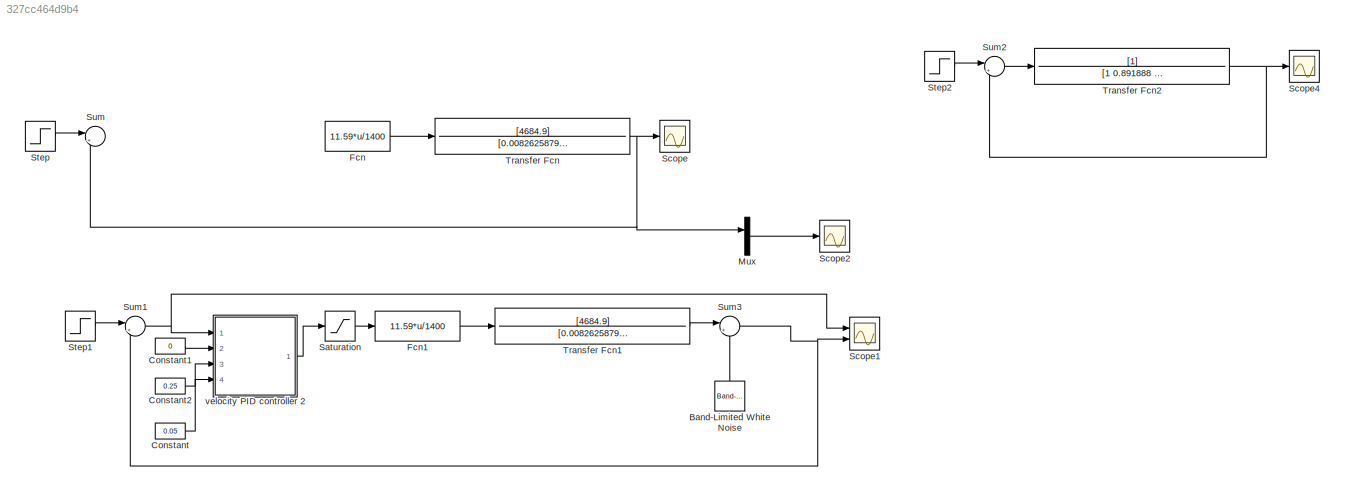
MODEL slx_327cc464d9b4
KIND model
CONFIG AbsTol = auto
CONFIG FixedStep = auto
CONFIG MaxStep = auto
CONFIG MinStep = auto
CONFIG RelTol = 1e-3
CONFIG SampleTimeConstraint = Unconstrained
CONFIG Solver = VariableStepAuto
CONFIG SolverMode = Auto
CONFIG SolverName = VariableStepAuto
CONFIG StartTime = 0.0
CONFIG StopTime = 5
BLOCK [Reference] Band-Limited White Noise  REF=simulink/Sources/Band-Limited
White Noise
  Ports = [0, 1]
  SourceBlock = simulink/Sources/Band-Limited\nWhite Noise
  SourceType = Band-Limited White Noise.
BLOCK [Constant] Constant
  OutMax = [1400]
  Value = 0.05
BLOCK [Constant] Constant1
  OutMax = [1400]
  Value = 0
BLOCK [Constant] Constant2
  OutMax = [1400]
  Value = 0.25
BLOCK [Fcn] Fcn
  Expr = 11.59*u/1400
BLOCK [Fcn] Fcn1
  Expr = 11.59*u/1400
BLOCK [Mux] Mux
  DisplayOption = bar
  Inputs = 2
  Ports = [2, 1]
BLOCK [Saturate] Saturation
  InputPortMap = u0
  LowerLimit = -1400
  Ports = [1, 1]
  UpperLimit = 1400
BLOCK [Scope] Scope
  Ports = [1]
  ScopeSpecificationString = Simulink.scopes.TimeScopeBlockCfg('CurrentConfiguration', extmgr.ConfigurationSet(extmgr.Configuration('Core','General UI',true),extmgr.Configuration('Core','Source UI',true),extmgr.Configuration('Sources','WiredSimulink',true),extmgr.Configuration('Visuals','Time Domain',true,'SerializedDisplays',{struct('MinYLimReal','-1.00000','MaxYLimReal','1.00000','YLabelReal','','MinYLimMag','0.00000','MaxY...<+1361ch>
BLOCK [Scope] Scope1
  NumInputPorts = 2
  Ports = [2]
  ScopeSpecificationString = Simulink.scopes.TimeScopeBlockCfg('CurrentConfiguration', extmgr.ConfigurationSet(extmgr.Configuration('Core','General UI',true),extmgr.Configuration('Core','Source UI',true),extmgr.Configuration('Sources','WiredSimulink',true,'DataLoggingVariableName','ScopeData1'),extmgr.Configuration('Visuals','Time Domain',true,'SerializedDisplays',{struct('MinYLimReal','-327.57411','MaxYLimReal','2327.57411',...<+1415ch>
BLOCK [Scope] Scope2
  Ports = [1]
  ScopeSpecificationString = Simulink.scopes.TimeScopeBlockCfg('CurrentConfiguration', extmgr.ConfigurationSet(extmgr.Configuration('Core','General UI',true),extmgr.Configuration('Core','Source UI',true),extmgr.Configuration('Sources','WiredSimulink',true,'DataLoggingVariableName','ScopeData2'),extmgr.Configuration('Visuals','Time Domain',true,'SerializedDisplays',{struct('MinYLimReal','-1.00000','MaxYLimReal','1.00000','YLab...<+1412ch>
BLOCK [Scope] Scope4
  Ports = [1]
  ScopeSpecificationString = Simulink.scopes.TimeScopeBlockCfg('CurrentConfiguration', extmgr.ConfigurationSet(extmgr.Configuration('Core','General UI',true),extmgr.Configuration('Core','Source UI',true),extmgr.Configuration('Sources','WiredSimulink',true,'DataLoggingVariableName','ScopeData1'),extmgr.Configuration('Visuals','Time Domain',true,'SerializedDisplays',{struct('MinYLimReal','-0.01676','MaxYLimReal','0.15085','YLab...<+1372ch>
BLOCK [Step] Step
  After = 9000
  SampleTime = 0.005
  Time = 0.11
BLOCK [Step] Step1
  After = 2000
  SampleTime = 0.005
  Time = 0
BLOCK [Step] Step2
  SampleTime = 0.005
  Time = 0
BLOCK [Sum] Sum
  IconShape = round
  InputSameDT = off
  Inputs = |+-
  OutDataTypeStr = Inherit: Inherit via internal rule
  Ports = [2, 1]
  SaturateOnIntegerOverflow = off
BLOCK [Sum] Sum1
  IconShape = round
  InputSameDT = off
  Inputs = |+-
  OutDataTypeStr = Inherit: Inherit via internal rule
  Ports = [2, 1]
  SaturateOnIntegerOverflow = off
BLOCK [Sum] Sum2
  IconShape = round
  InputSameDT = off
  Inputs = |+-
  OutDataTypeStr = Inherit: Inherit via internal rule
  Ports = [2, 1]
  SaturateOnIntegerOverflow = off
BLOCK [Sum] Sum3
  IconShape = round
  InputSameDT = off
  Inputs = |++
  OutDataTypeStr = Inherit: Inherit via internal rule
  Ports = [2, 1]
  SaturateOnIntegerOverflow = off
BLOCK [TransferFcn] Transfer Fcn
  Denominator = [0.00826258795  0.233603 1]
  Numerator = [4684.9]
BLOCK [TransferFcn] Transfer Fcn1
  Denominator = [0.00826258795  0.233603 1]
  Numerator = [4684.9]
BLOCK [TransferFcn] Transfer Fcn2
  Denominator = [1  0.891888 11.456445]
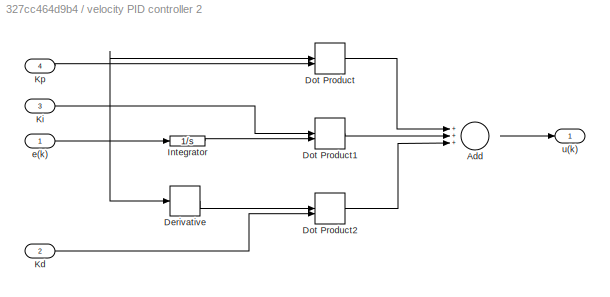
BLOCK [SubSystem] velocity PID controller 2
  Ports = [4, 1]
  RequestExecContextInheritance = off
  Variant = off
BLOCK [Sum] velocity PID controller 2/Add
  InputSameDT = off
  Inputs = +++
  OutDataTypeStr = Inherit: Inherit via internal rule
  Ports = [3, 1]
  SaturateOnIntegerOverflow = off
BLOCK [Derivative] velocity PID controller 2/Derivative
BLOCK [DotProduct] velocity PID controller 2/Dot Product
  OutDataTypeStr = Inherit: Inherit via internal rule
BLOCK [DotProduct] velocity PID controller 2/Dot Product1
  OutDataTypeStr = Inherit: Inherit via internal rule
BLOCK [DotProduct] velocity PID controller 2/Dot Product2
  OutDataTypeStr = Inherit: Inherit via internal rule
BLOCK [Integrator] velocity PID controller 2/Integrator
  Ports = [1, 1]
BLOCK [Inport] velocity PID controller 2/Kd 
  IconDisplay = Port number
  Port = 2
BLOCK [Inport] velocity PID controller 2/Ki 
  IconDisplay = Port number
  Port = 3
BLOCK [Inport] velocity PID controller 2/Kp 
  IconDisplay = Port number
  Port = 4
BLOCK [Inport] velocity PID controller 2/e(k)
  IconDisplay = Port number
BLOCK [Outport] velocity PID controller 2/u(k)
  IconDisplay = Port number
LINE Band-Limited White Noise:1 -> Sum3:2
LINE Constant1:1 -> velocity PID controller 2:2
LINE Constant2:1 -> velocity PID controller 2:3
LINE Constant:1 -> velocity PID controller 2:4
LINE Fcn1:1 -> Transfer Fcn1:1
LINE Fcn:1 -> Transfer Fcn:1
LINE Mux:1 -> Scope2:1
LINE Saturation:1 -> Fcn1:1
LINE Step1:1 -> Sum1:1
LINE Step2:1 -> Sum2:1
LINE Step:1 -> Sum:1
NET Sum1:1 -> Scope1:1, velocity PID controller 2:1
LINE Sum2:1 -> Transfer Fcn2:1
NET Sum3:1 -> Scope1:2, Sum1:2
LINE Transfer Fcn1:1 -> Sum3:1
NET Transfer Fcn2:1 -> Scope4:1, Sum2:2
NET Transfer Fcn:1 -> Mux:1, Scope:1, Sum:2
LINE velocity PID controller 2/Add:1 -> velocity PID controller 2/u(k):1
LINE velocity PID controller 2/Derivative:1 -> velocity PID controller 2/Dot Product2:1
LINE velocity PID controller 2/Dot Product1:1 -> velocity PID controller 2/Add:2
LINE velocity PID controller 2/Dot Product2:1 -> velocity PID controller 2/Add:3
LINE velocity PID controller 2/Dot Product:1 -> velocity PID controller 2/Add:1
LINE velocity PID controller 2/Integrator:1 -> velocity PID controller 2/Dot Product1:2
LINE velocity PID controller 2/Kd :1 -> velocity PID controller 2/Dot Product2:2
LINE velocity PID controller 2/Ki :1 -> velocity PID controller 2/Dot Product1:1
LINE velocity PID controller 2/Kp :1 -> velocity PID controller 2/Dot Product:2
NET velocity PID controller 2/e(k):1 -> velocity PID controller 2/Derivative:1, velocity PID controller 2/Dot Product:1, velocity PID controller 2/Integrator:1
LINE velocity PID controller 2:1 -> Saturation:1
note: NET lines group one-source signal fan-out (src -> all destinations, sorted); 1:1 wires keep LINE
